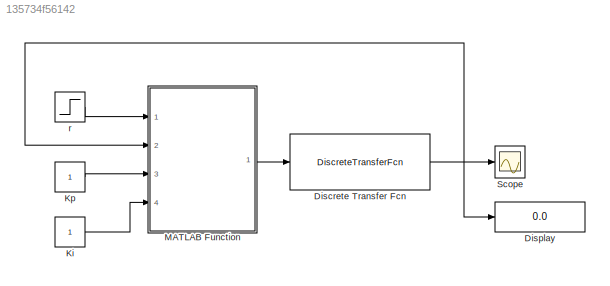
MODEL slx_135734f56142
KIND model
BLOCK [DiscreteTransferFcn] Discrete Transfer Fcn
  Denominator = [1 -2.72 2.46 -0.74]
  InputPortMap = u0
  Numerator = [0.0031 0.0115 0.0027]
  Ports = [1, 1]
  SampleTime = 0.01
BLOCK [Display] Display
  Decimation = 1
  Lockdown = off
  Ports = [1]
BLOCK [Constant] Ki
BLOCK [Constant] Kp
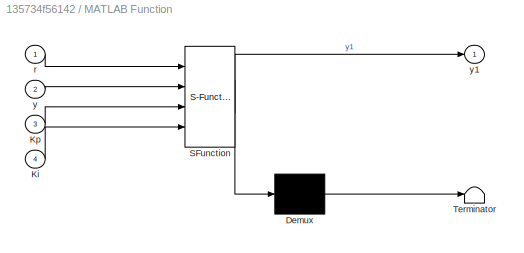
BLOCK [SubSystem] MATLAB Function
  ErrorFcn = Stateflow.Translate.translate
  FunctionWithSeparateData = off
  MaskHideContents = off
  MinAlgLoopOccurrences = off
  Opaque = off
  PermitHierarchicalResolution = ExplicitOnly
  Ports = [4, 1]
  PropExecContextOutsideSubsystem = off
  RTWSystemCode = Auto
  RequestExecContextInheritance = off
  SFBlockType = MATLAB Function
  TreatAsAtomicUnit = on
BLOCK [Demux] MATLAB Function/ Demux 
  Outputs = 1
  Ports = [1, 1]
BLOCK [S-Function] MATLAB Function/ SFunction 
  EnableBusSupport = off
  FunctionName = sf_sfun
  PortCounts = [4 2]
  Ports = [4, 2]
  Tag = Stateflow S-Function lab4_1 2
BLOCK [Terminator] MATLAB Function/ Terminator 
BLOCK [Inport] MATLAB Function/Ki
  IconDisplay = Port number
  Port = 4
BLOCK [Inport] MATLAB Function/Kp
  IconDisplay = Port number
  Port = 3
BLOCK [Inport] MATLAB Function/r
  IconDisplay = Port number
BLOCK [Inport] MATLAB Function/y
  IconDisplay = Port number
  Port = 2
BLOCK [Outport] MATLAB Function/y1
  IconDisplay = Port number
BLOCK [Scope] Scope
  DataFormat = StructureWithTime
  Floating = off
  NumInputPorts = 1
  Ports = [1]
  SampleTime = 0
  ShowLegends = off
BLOCK [Step] r
  SampleTime = 0
NET Discrete Transfer Fcn:1 -> Display:1, MATLAB Function:2, Scope:1
LINE Ki:1 -> MATLAB Function:4
LINE Kp:1 -> MATLAB Function:3
LINE MATLAB Function:1 -> Discrete Transfer Fcn:1
LINE r:1 -> MATLAB Function:1
note: NET lines group one-source signal fan-out (src -> all destinations, sorted); 1:1 wires keep LINE
